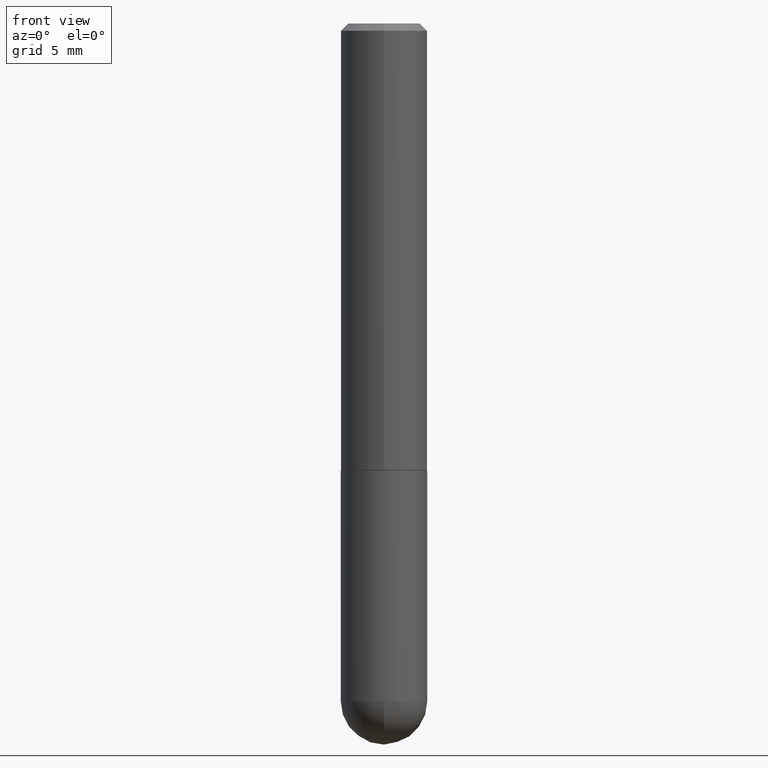
[diagram: clean part render]
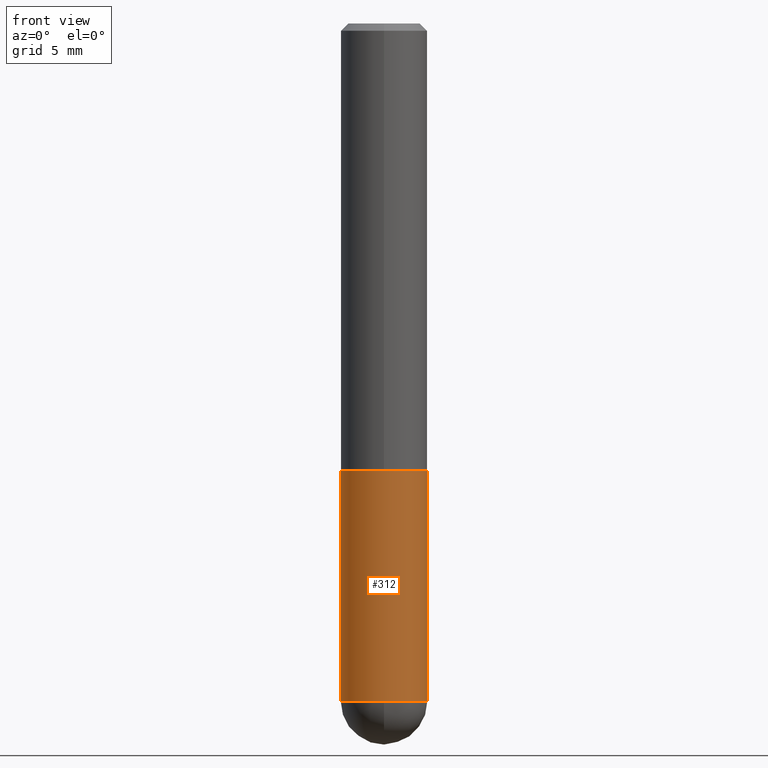
[diagram: same view with one face highlighted and labeled with its STEP entity id]
A machine part, front view. The second image highlights one B-rep face of the part: STEP entity #312.
In plain terms, the highlighted cylindrical surface (partial cylindrical patch) has radius 2.9997 mm, axis along (-0, 0, 1).
Its self-contained STEP definition (entity closure, byte-faithful):
#10 = DIRECTION ( 'NONE',  ( -2.445468806185136877E-29, 3.491481338843145188E-15, 1.000000000000000000 ) ) ;
#13 = AXIS2_PLACEMENT_3D ( 'NONE', #80, #145, #355 ) ;
#14 = DIRECTION ( 'NONE',  ( -2.445468806185136597E-29, 3.491481338843145583E-15, 1.000000000000000000 ) ) ;
#22 = CIRCLE ( 'NONE', #272, 0.1180999999999999966 ) ;
#23 = DIRECTION ( 'NONE',  ( 1.000000000000000000, -6.982962677686265133E-15, 0.000000000000000000 ) ) ;
#38 = CYLINDRICAL_SURFACE ( 'NONE', #361, 0.1180999999999999966 ) ;
#46 = VERTEX_POINT ( 'NONE', #290 ) ;
#56 = ORIENTED_EDGE ( 'NONE', *, *, #166, .T. ) ;
#61 = EDGE_CURVE ( 'NONE', #46, #125, #67, .T. ) ;
#65 = VERTEX_POINT ( 'NONE', #130 ) ;
#67 = LINE ( 'NONE', #197, #114 ) ;
#71 = EDGE_CURVE ( 'NONE', #243, #100, #22, .T. ) ;
#80 = CARTESIAN_POINT ( 'NONE',  ( 2.984694677948959472E-29, -4.261352974058059028E-15, -1.220499999999999918 ) ) ;
#90 = ORIENTED_EDGE ( 'NONE', *, *, #71, .T. ) ;
#93 = EDGE_CURVE ( 'NONE', #243, #65, #137, .T. ) ;
#100 = VERTEX_POINT ( 'NONE', #359 ) ;
#103 = VECTOR ( 'NONE', #110, 39.37007874015748143 ) ;
#110 = DIRECTION ( 'NONE',  ( -2.445468806185136877E-29, 3.491481338843145188E-15, 1.000000000000000000 ) ) ;
#114 = VECTOR ( 'NONE', #10, 39.37007874015748143 ) ;
#125 = VERTEX_POINT ( 'NONE', #334 ) ;
#130 = CARTESIAN_POINT ( 'NONE',  ( -0.1180999999999999966, -4.521844050794029710E-15, -1.220499999999999918 ) ) ;
#137 = LINE ( 'NONE', #147, #103 ) ;
#145 = DIRECTION ( 'NONE',  ( -2.445468806185136597E-29, 3.491481338843145583E-15, 1.000000000000000000 ) ) ;
#147 = CARTESIAN_POINT ( 'NONE',  ( -0.1180999999999999966, 8.391509709326782957E-16, -5.809262341591043784E-30 ) ) ;
#155 = EDGE_LOOP ( 'NONE', ( #269, #90, #56, #228, #343 ) ) ;
#157 = EDGE_CURVE ( 'NONE', #65, #125, #316, .T. ) ;
#166 = EDGE_CURVE ( 'NONE', #100, #46, #244, .T. ) ;
#197 = CARTESIAN_POINT ( 'NONE',  ( 0.1180999999999999966, -8.246878922347480654E-16, 5.758764772215000440E-30 ) ) ;
#228 = ORIENTED_EDGE ( 'NONE', *, *, #61, .T. ) ;
#243 = VERTEX_POINT ( 'NONE', #310 ) ;
#244 = CIRCLE ( 'NONE', #337, 0.1180999999999999966 ) ;
#258 = DIRECTION ( 'NONE',  ( 1.000000000000000000, -6.982962677686266711E-15, 4.876176775795936353E-29 ) ) ;
#259 = CARTESIAN_POINT ( 'NONE',  ( 4.525095478964976833E-29, -6.460637069395356787E-15, -1.850400000000000045 ) ) ;
#261 = CARTESIAN_POINT ( 'NONE',  ( 4.525095478964976833E-29, -6.460637069395356787E-15, -1.850400000000000045 ) ) ;
#269 = ORIENTED_EDGE ( 'NONE', *, *, #93, .F. ) ;
#272 = AXIS2_PLACEMENT_3D ( 'NONE', #259, #294, #23 ) ;
#289 = DIRECTION ( 'NONE',  ( -2.445468806185136597E-29, 3.491481338843145583E-15, 1.000000000000000000 ) ) ;
#290 = CARTESIAN_POINT ( 'NONE',  ( 0.1180999999999999966, -6.185682913961456170E-15, -1.850400000000000045 ) ) ;
#293 = DIRECTION ( 'NONE',  ( 1.000000000000000000, -6.982962677686265133E-15, 0.000000000000000000 ) ) ;
#294 = DIRECTION ( 'NONE',  ( -2.445468806185136597E-29, 3.491481338843145583E-15, 1.000000000000000000 ) ) ;
#310 = CARTESIAN_POINT ( 'NONE',  ( -0.1180999999999999966, -4.521844050794030499E-15, -1.850400000000000045 ) ) ;
#312 = ADVANCED_FACE ( 'NONE', ( #344 ), #38, .T. ) ;
#316 = CIRCLE ( 'NONE', #13, 0.1180999999999999966 ) ;
#334 = CARTESIAN_POINT ( 'NONE',  ( 0.1180999999999999966, -5.086040866292807290E-15, -1.220499999999999918 ) ) ;
#337 = AXIS2_PLACEMENT_3D ( 'NONE', #261, #14, #293 ) ;
#343 = ORIENTED_EDGE ( 'NONE', *, *, #157, .F. ) ;
#344 = FACE_OUTER_BOUND ( 'NONE', #155, .T. ) ;
#355 = DIRECTION ( 'NONE',  ( 1.000000000000000000, -6.982962677686265133E-15, 0.000000000000000000 ) ) ;
#359 = CARTESIAN_POINT ( 'NONE',  ( -8.391509709326354014E-16, -0.1181000000000068245, -1.850399999999999379 ) ) ;
#361 = AXIS2_PLACEMENT_3D ( 'NONE', #380, #289, #258 ) ;
#380 = CARTESIAN_POINT ( 'NONE',  ( 0.000000000000000000, 0.000000000000000000, 0.000000000000000000 ) ) ;